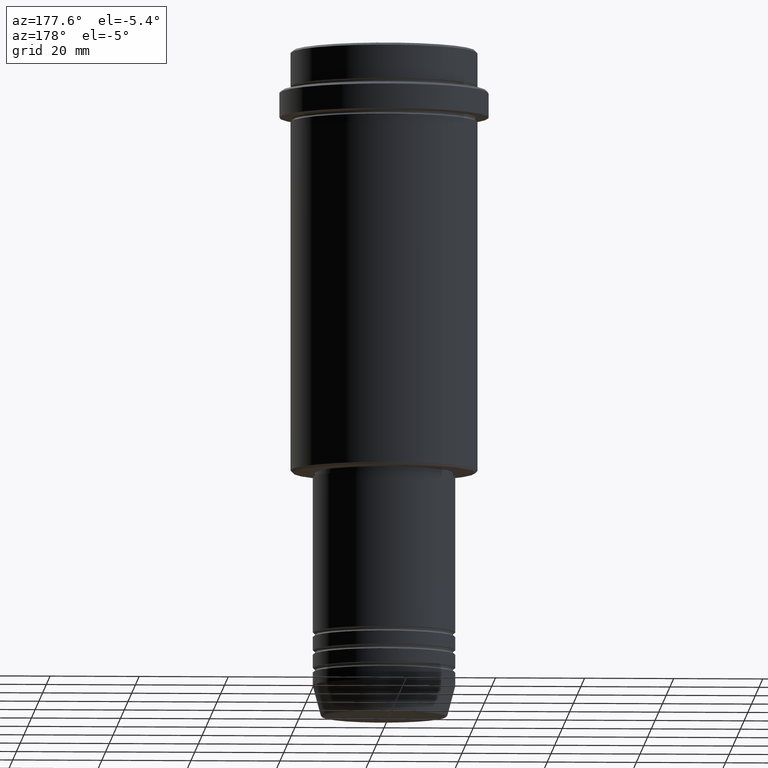
[diagram: clean part render]
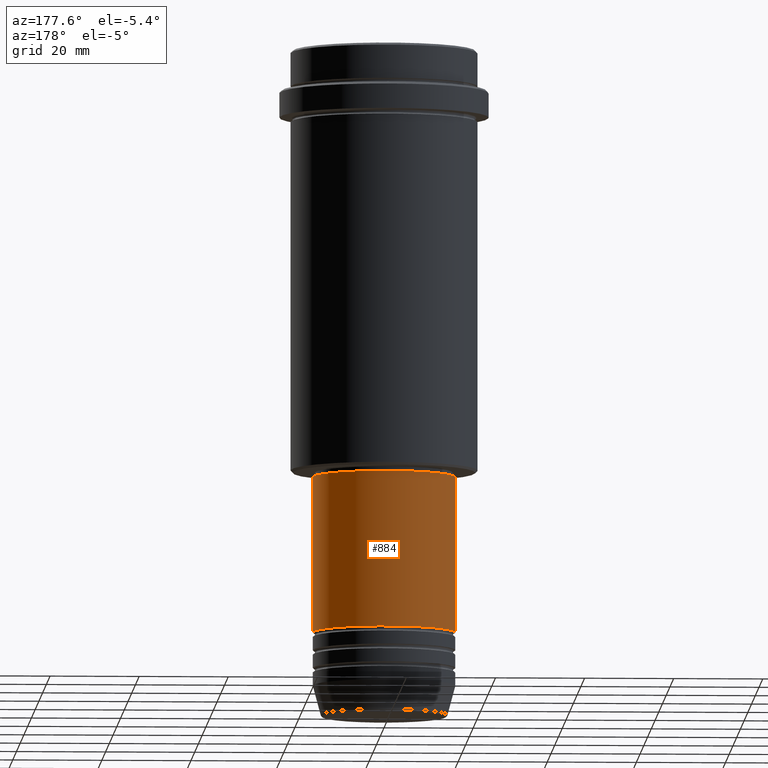
[diagram: same view with one face highlighted and labeled with its STEP entity id]
A machine part, auxiliary view. The second image highlights one B-rep face of the part: STEP entity #884.
In plain terms, the highlighted cylindrical surface (partial cylindrical patch) has radius 16 mm, axis along (-0, -0, 1).
Its self-contained STEP definition (entity closure, byte-faithful):
#38 = DIRECTION ( 'NONE',  ( -0.000000000000000000, -0.000000000000000000, 1.000000000000000000 ) ) ;
#43 = ORIENTED_EDGE ( 'NONE', *, *, #706, .F. ) ;
#97 = DIRECTION ( 'NONE',  ( 1.000000000000000000, 0.000000000000000000, 0.000000000000000000 ) ) ;
#194 = ORIENTED_EDGE ( 'NONE', *, *, #360, .T. ) ;
#246 = FACE_OUTER_BOUND ( 'NONE', #1210, .T. ) ;
#281 = CARTESIAN_POINT ( 'NONE',  ( 0.000000000000000000, 0.000000000000000000, -96.00000000000000000 ) ) ;
#337 = CARTESIAN_POINT ( 'NONE',  ( 16.00000000000000000, 0.000000000000000000, -130.9999999999998863 ) ) ;
#344 = CIRCLE ( 'NONE', #430, 16.00000000000000355 ) ;
#354 = CARTESIAN_POINT ( 'NONE',  ( -16.00000000000000355, 1.959434878635765526E-15, -96.00000000000000000 ) ) ;
#360 = EDGE_CURVE ( 'NONE', #1171, #914, #1150, .T. ) ;
#367 = VERTEX_POINT ( 'NONE', #354 ) ;
#421 = LINE ( 'NONE', #652, #785 ) ;
#430 = AXIS2_PLACEMENT_3D ( 'NONE', #281, #1192, #97 ) ;
#551 = AXIS2_PLACEMENT_3D ( 'NONE', #926, #1247, #1143 ) ;
#556 = ORIENTED_EDGE ( 'NONE', *, *, #1155, .F. ) ;
#599 = EDGE_CURVE ( 'NONE', #914, #367, #1249, .T. ) ;
#652 = CARTESIAN_POINT ( 'NONE',  ( 16.00000000000000000, 0.000000000000000000, 0.000000000000000000 ) ) ;
#681 = CYLINDRICAL_SURFACE ( 'NONE', #551, 16.00000000000000000 ) ;
#706 = EDGE_CURVE ( 'NONE', #1417, #367, #344, .T. ) ;
#785 = VECTOR ( 'NONE', #1202, 1000.000000000000000 ) ;
#876 = AXIS2_PLACEMENT_3D ( 'NONE', #1349, #1259, #1343 ) ;
#884 = ADVANCED_FACE ( 'NONE', ( #246 ), #681, .T. ) ;
#914 = VERTEX_POINT ( 'NONE', #1361 ) ;
#926 = CARTESIAN_POINT ( 'NONE',  ( 0.000000000000000000, 0.000000000000000000, 0.000000000000000000 ) ) ;
#1047 = CARTESIAN_POINT ( 'NONE',  ( -16.00000000000000000, 1.959434878635765131E-15, 0.000000000000000000 ) ) ;
#1143 = DIRECTION ( 'NONE',  ( 1.000000000000000000, 0.000000000000000000, 0.000000000000000000 ) ) ;
#1150 = CIRCLE ( 'NONE', #876, 16.00000000000000000 ) ;
#1155 = EDGE_CURVE ( 'NONE', #1171, #1417, #421, .T. ) ;
#1171 = VERTEX_POINT ( 'NONE', #337 ) ;
#1173 = VECTOR ( 'NONE', #38, 1000.000000000000000 ) ;
#1192 = DIRECTION ( 'NONE',  ( -0.000000000000000000, -0.000000000000000000, 1.000000000000000000 ) ) ;
#1202 = DIRECTION ( 'NONE',  ( -0.000000000000000000, -0.000000000000000000, 1.000000000000000000 ) ) ;
#1210 = EDGE_LOOP ( 'NONE', ( #194, #1410, #43, #556 ) ) ;
#1247 = DIRECTION ( 'NONE',  ( -0.000000000000000000, -0.000000000000000000, 1.000000000000000000 ) ) ;
#1249 = LINE ( 'NONE', #1047, #1173 ) ;
#1259 = DIRECTION ( 'NONE',  ( -0.000000000000000000, -0.000000000000000000, 1.000000000000000000 ) ) ;
#1284 = CARTESIAN_POINT ( 'NONE',  ( 16.00000000000000355, 0.000000000000000000, -96.00000000000000000 ) ) ;
#1343 = DIRECTION ( 'NONE',  ( 1.000000000000000000, 0.000000000000000000, 0.000000000000000000 ) ) ;
#1349 = CARTESIAN_POINT ( 'NONE',  ( 0.000000000000000000, 0.000000000000000000, -130.9999999999998863 ) ) ;
#1361 = CARTESIAN_POINT ( 'NONE',  ( -16.00000000000000000, 1.959434878635765131E-15, -130.9999999999998863 ) ) ;
#1410 = ORIENTED_EDGE ( 'NONE', *, *, #599, .T. ) ;
#1417 = VERTEX_POINT ( 'NONE', #1284 ) ;